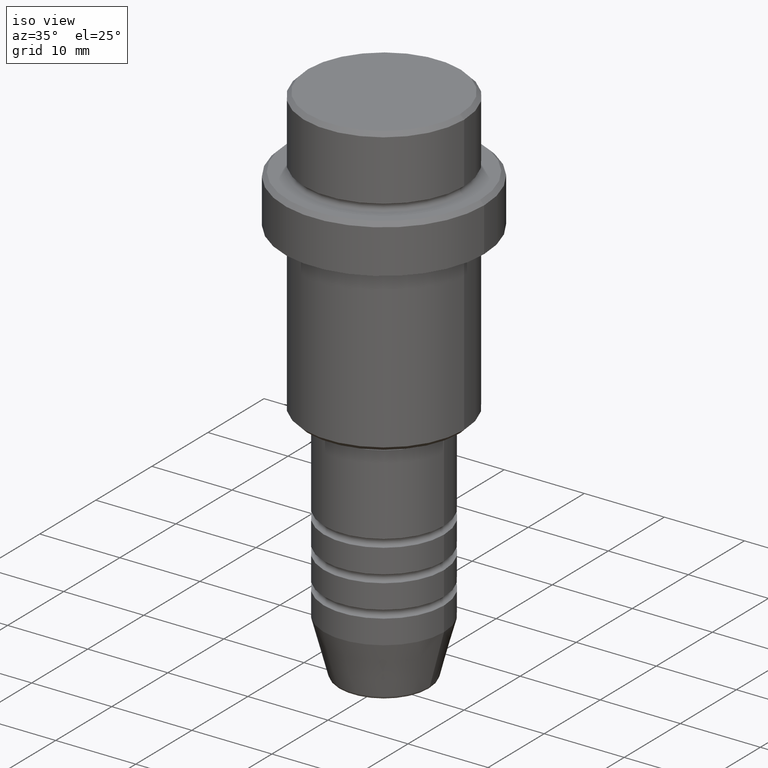
[diagram: clean part render]
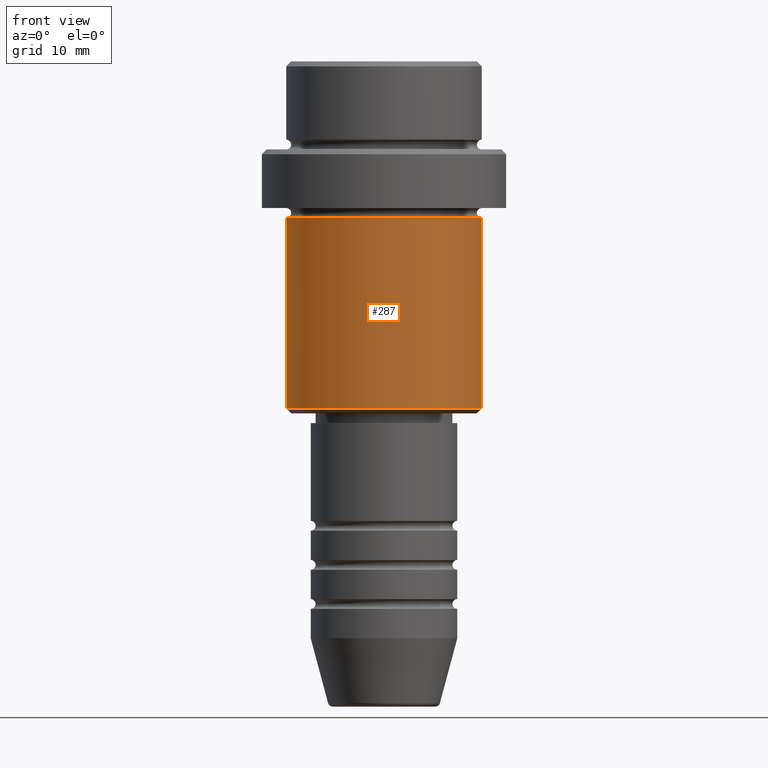
[diagram: tour spotlight — one face highlighted and labeled with its STEP entity id]
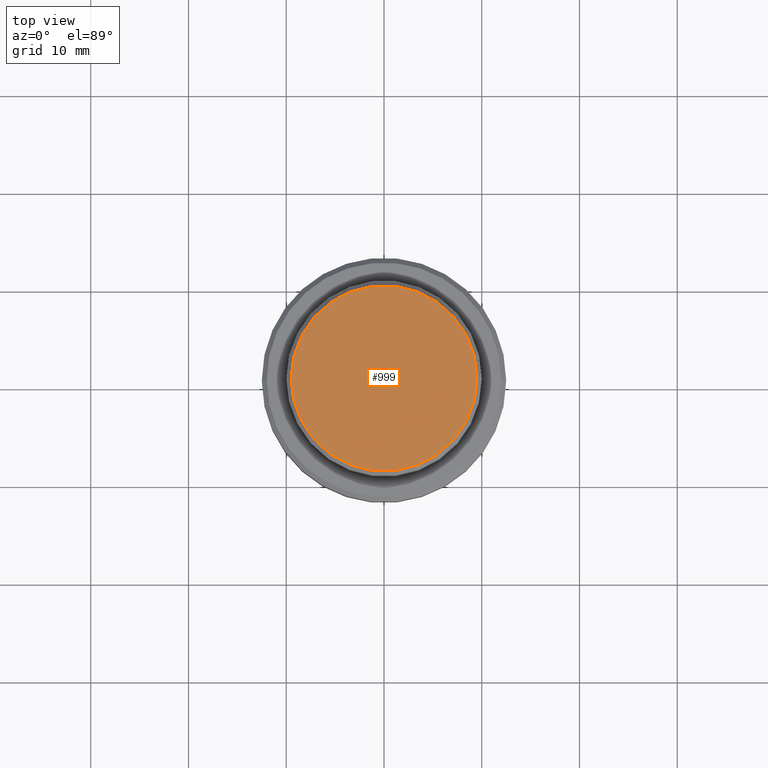
[diagram: tour spotlight — one face highlighted and labeled with its STEP entity id]
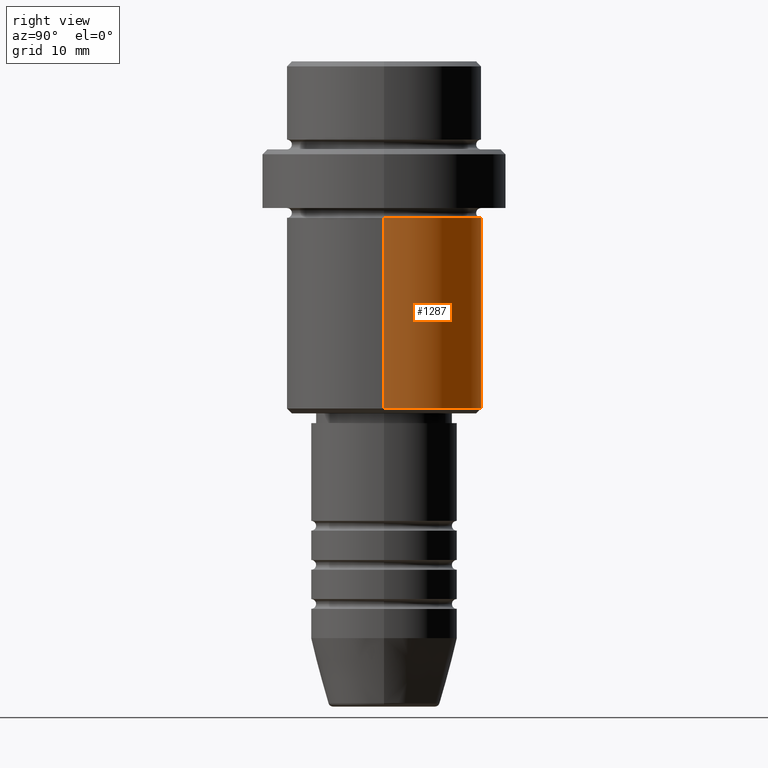
[diagram: tour spotlight — one face highlighted and labeled with its STEP entity id]
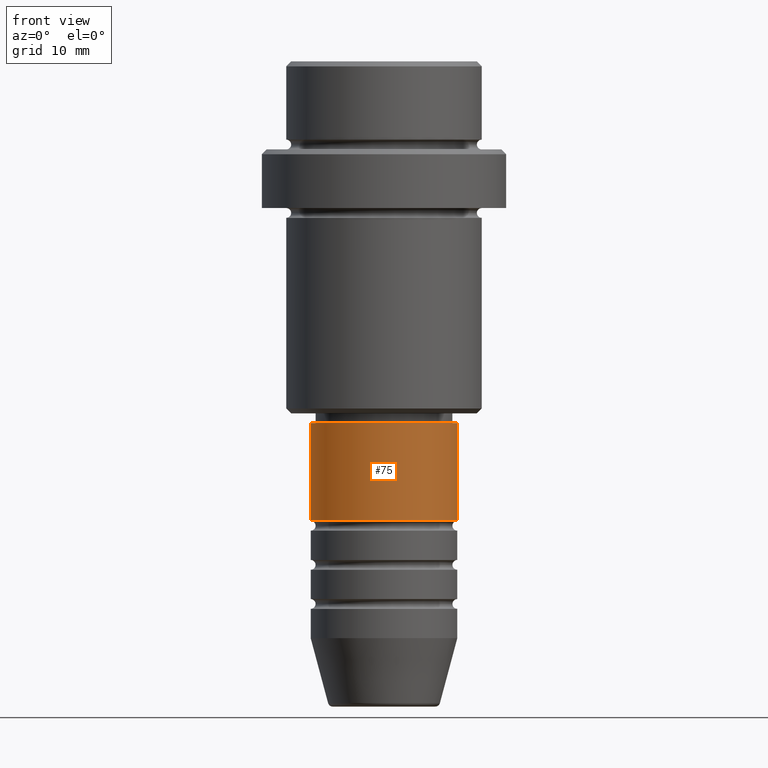
[diagram: tour spotlight — one face highlighted and labeled with its STEP entity id]
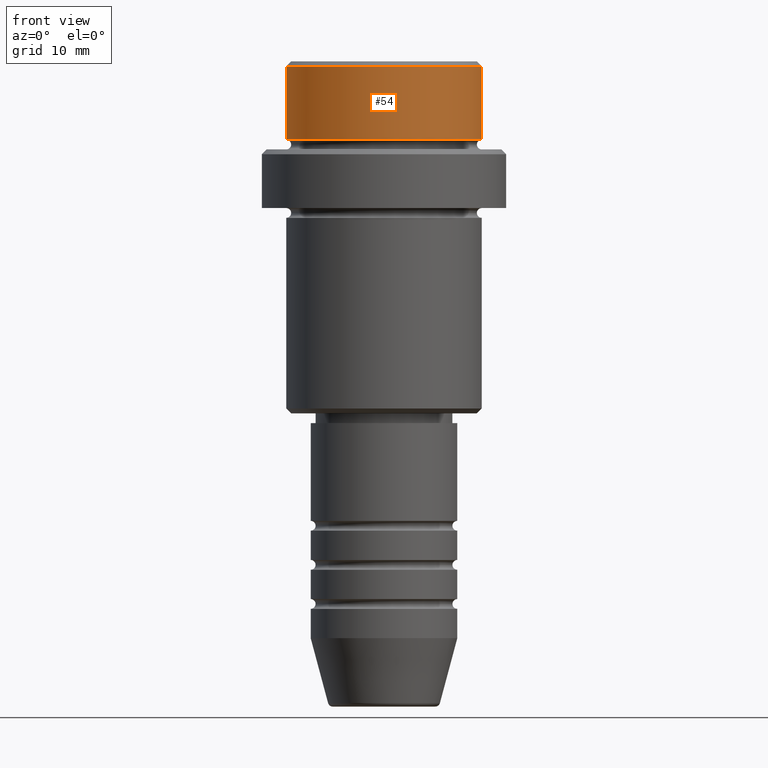
[diagram: tour spotlight — one face highlighted and labeled with its STEP entity id]
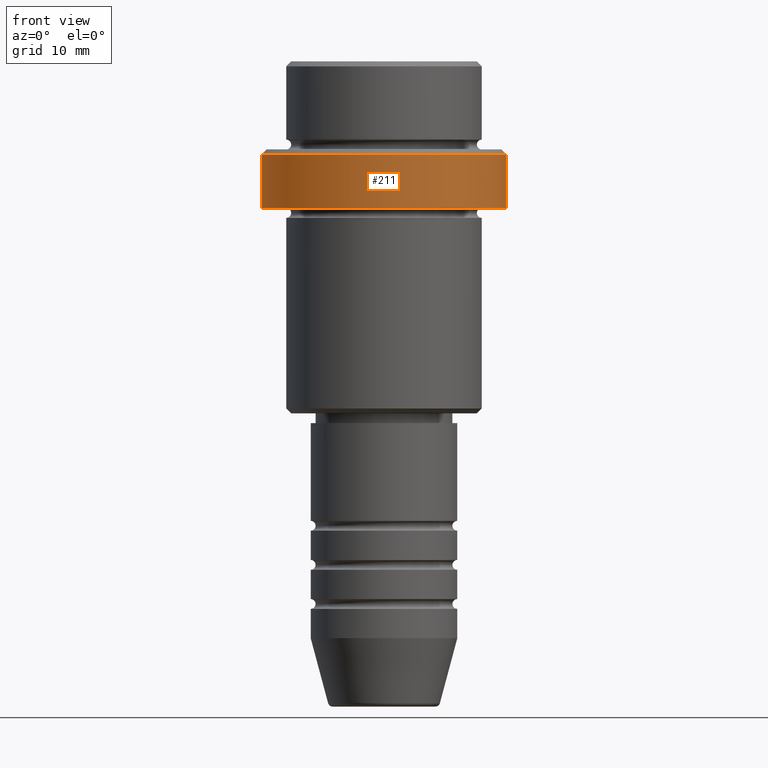
[diagram: tour spotlight — one face highlighted and labeled with its STEP entity id]
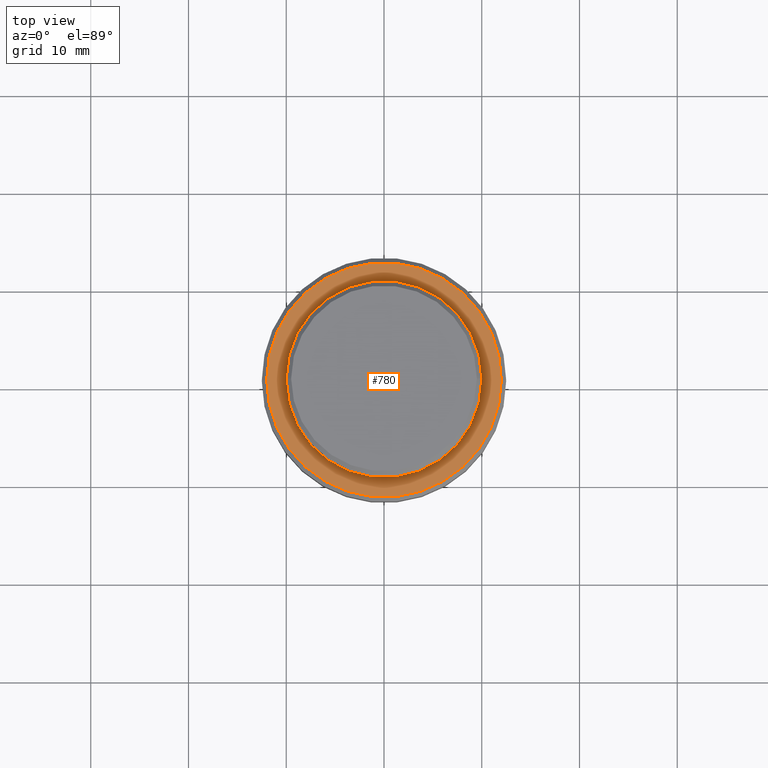
[diagram: tour spotlight — one face highlighted and labeled with its STEP entity id]
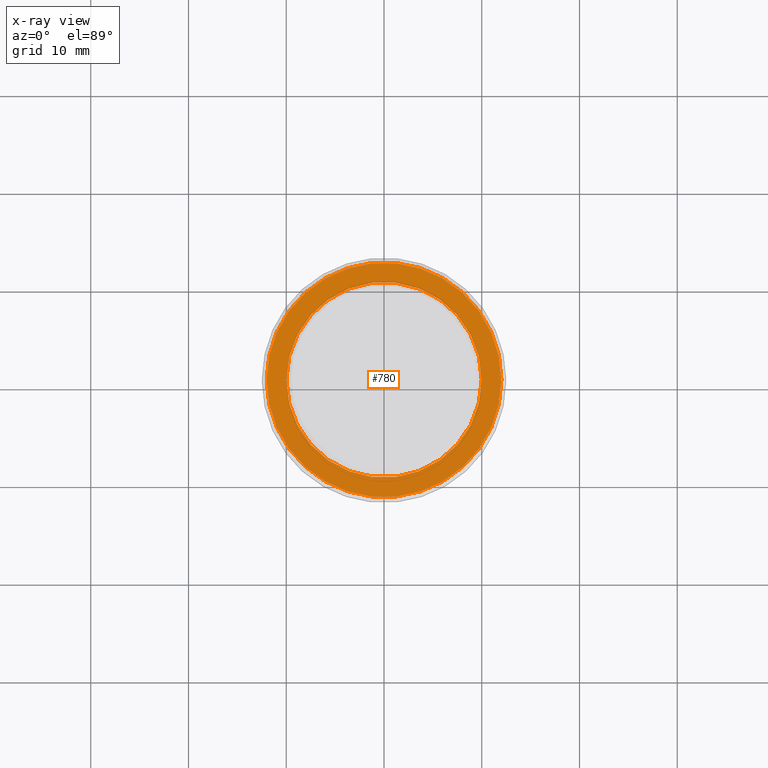
[diagram: x-ray of the same camera — body ghosted, this tour face saturated]
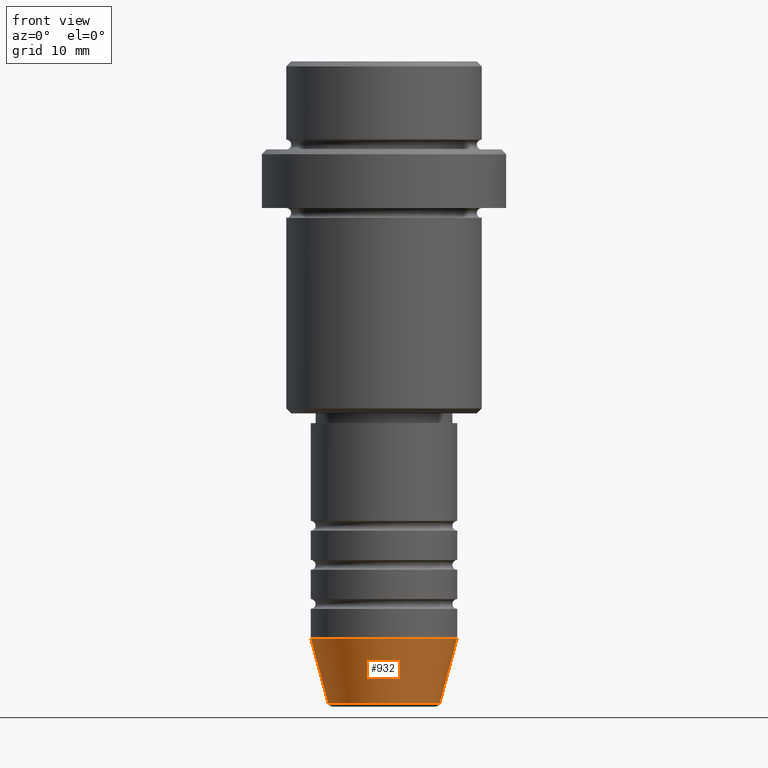
[diagram: tour spotlight — one face highlighted and labeled with its STEP entity id]
A machine part: a face-by-face anatomy tour. The part has 52 B-rep faces; the first image is the clean iso view, then the 8 largest visible faces are spotlighted one at a time (largest first), each with its STEP entity span.

Face 1 — front view, entity #287. In plain terms, the highlighted cylindrical surface (partial cylindrical patch) has radius 10 mm, axis along (-0, -0, 1).
Definition (entity closure, byte-faithful):
#33 = DIRECTION ( 'NONE',  ( 1.000000000000000000, 0.000000000000000000, 0.000000000000000000 ) ) ;
#36 = CARTESIAN_POINT ( 'NONE',  ( 9.999999999999998224, 0.000000000000000000, 0.000000000000000000 ) ) ;
#74 = DIRECTION ( 'NONE',  ( -0.000000000000000000, -0.000000000000000000, 1.000000000000000000 ) ) ;
#100 = AXIS2_PLACEMENT_3D ( 'NONE', #1254, #1136, #33 ) ;
#143 = EDGE_CURVE ( 'NONE', #531, #175, #1231, .T. ) ;
#154 = VECTOR ( 'NONE', #489, 1000.000000000000000 ) ;
#155 = CIRCLE ( 'NONE', #238, 9.999999999999998224 ) ;
#175 = VERTEX_POINT ( 'NONE', #390 ) ;
#231 = CARTESIAN_POINT ( 'NONE',  ( 9.999999999999998224, 0.000000000000000000, -35.49999999999998579 ) ) ;
#238 = AXIS2_PLACEMENT_3D ( 'NONE', #1282, #983, #883 ) ;
#281 = CARTESIAN_POINT ( 'NONE',  ( -9.999999999999998224, 1.224646799147353059E-15, -16.00000000000000000 ) ) ;
#287 = ADVANCED_FACE ( 'NONE', ( #755 ), #1407, .T. ) ;
#307 = EDGE_CURVE ( 'NONE', #558, #531, #155, .T. ) ;
#325 = DIRECTION ( 'NONE',  ( -0.000000000000000000, -0.000000000000000000, 1.000000000000000000 ) ) ;
#373 = VERTEX_POINT ( 'NONE', #281 ) ;
#390 = CARTESIAN_POINT ( 'NONE',  ( 9.999999999999998224, 0.000000000000000000, -16.00000000000000000 ) ) ;
#430 = CARTESIAN_POINT ( 'NONE',  ( 0.000000000000000000, 0.000000000000000000, 0.000000000000000000 ) ) ;
#489 = DIRECTION ( 'NONE',  ( -0.000000000000000000, -0.000000000000000000, 1.000000000000000000 ) ) ;
#531 = VERTEX_POINT ( 'NONE', #231 ) ;
#537 = ORIENTED_EDGE ( 'NONE', *, *, #307, .T. ) ;
#558 = VERTEX_POINT ( 'NONE', #1114 ) ;
#590 = EDGE_CURVE ( 'NONE', #558, #373, #964, .T. ) ;
#613 = AXIS2_PLACEMENT_3D ( 'NONE', #430, #325, #764 ) ;
#698 = ORIENTED_EDGE ( 'NONE', *, *, #143, .T. ) ;
#755 = FACE_OUTER_BOUND ( 'NONE', #1039, .T. ) ;
#764 = DIRECTION ( 'NONE',  ( 1.000000000000000000, 0.000000000000000000, 0.000000000000000000 ) ) ;
#883 = DIRECTION ( 'NONE',  ( -1.000000000000000000, 0.000000000000000000, 0.000000000000000000 ) ) ;
#964 = LINE ( 'NONE', #1178, #1253 ) ;
#983 = DIRECTION ( 'NONE',  ( -0.000000000000000000, -0.000000000000000000, 1.000000000000000000 ) ) ;
#1039 = EDGE_LOOP ( 'NONE', ( #1404, #537, #698, #1094 ) ) ;
#1094 = ORIENTED_EDGE ( 'NONE', *, *, #1314, .F. ) ;
#1107 = CIRCLE ( 'NONE', #100, 9.999999999999998224 ) ;
#1114 = CARTESIAN_POINT ( 'NONE',  ( -9.999999999999998224, 1.224646799147353059E-15, -35.49999999999998579 ) ) ;
#1136 = DIRECTION ( 'NONE',  ( -0.000000000000000000, -0.000000000000000000, 1.000000000000000000 ) ) ;
#1178 = CARTESIAN_POINT ( 'NONE',  ( -9.999999999999998224, 1.224646799147353059E-15, 0.000000000000000000 ) ) ;
#1231 = LINE ( 'NONE', #36, #154 ) ;
#1253 = VECTOR ( 'NONE', #74, 1000.000000000000000 ) ;
#1254 = CARTESIAN_POINT ( 'NONE',  ( 0.000000000000000000, 0.000000000000000000, -16.00000000000000000 ) ) ;
#1282 = CARTESIAN_POINT ( 'NONE',  ( 0.000000000000000000, 0.000000000000000000, -35.49999999999998579 ) ) ;
#1314 = EDGE_CURVE ( 'NONE', #373, #175, #1107, .T. ) ;
#1404 = ORIENTED_EDGE ( 'NONE', *, *, #590, .F. ) ;
#1407 = CYLINDRICAL_SURFACE ( 'NONE', #613, 9.999999999999998224 ) ;

Face 2 — top view, entity #999. In plain terms, the highlighted planar face has unit normal (0, -0, 1).
Definition (entity closure, byte-faithful):
#24 = AXIS2_PLACEMENT_3D ( 'NONE', #1156, #1332, #279 ) ;
#31 = DIRECTION ( 'NONE',  ( -0.000000000000000000, -0.000000000000000000, 1.000000000000000000 ) ) ;
#46 = DIRECTION ( 'NONE',  ( 1.000000000000000000, 0.000000000000000000, 0.000000000000000000 ) ) ;
#85 = EDGE_CURVE ( 'NONE', #865, #924, #1317, .T. ) ;
#108 = EDGE_CURVE ( 'NONE', #924, #865, #587, .T. ) ;
#149 = CARTESIAN_POINT ( 'NONE',  ( 0.000000000000000000, 0.000000000000000000, 0.000000000000000000 ) ) ;
#173 = EDGE_LOOP ( 'NONE', ( #1151, #1377 ) ) ;
#279 = DIRECTION ( 'NONE',  ( 1.000000000000000000, 0.000000000000000000, 0.000000000000000000 ) ) ;
#513 = CARTESIAN_POINT ( 'NONE',  ( 9.500000000000001776, 1.194030629168669469E-15, 0.000000000000000000 ) ) ;
#583 = DIRECTION ( 'NONE',  ( 0.000000000000000000, -0.000000000000000000, 1.000000000000000000 ) ) ;
#587 = CIRCLE ( 'NONE', #893, 9.500000000000001776 ) ;
#691 = FACE_OUTER_BOUND ( 'NONE', #173, .T. ) ;
#865 = VERTEX_POINT ( 'NONE', #513 ) ;
#893 = AXIS2_PLACEMENT_3D ( 'NONE', #1350, #31, #46 ) ;
#905 = CARTESIAN_POINT ( 'NONE',  ( -9.500000000000001776, 0.000000000000000000, 0.000000000000000000 ) ) ;
#924 = VERTEX_POINT ( 'NONE', #905 ) ;
#999 = ADVANCED_FACE ( 'NONE', ( #691 ), #1142, .T. ) ;
#1029 = DIRECTION ( 'NONE',  ( 1.000000000000000000, 0.000000000000000000, 0.000000000000000000 ) ) ;
#1082 = AXIS2_PLACEMENT_3D ( 'NONE', #149, #583, #1029 ) ;
#1142 = PLANE ( 'NONE',  #1082 ) ;
#1151 = ORIENTED_EDGE ( 'NONE', *, *, #108, .T. ) ;
#1156 = CARTESIAN_POINT ( 'NONE',  ( 0.000000000000000000, 0.000000000000000000, 0.000000000000000000 ) ) ;
#1317 = CIRCLE ( 'NONE', #24, 9.500000000000001776 ) ;
#1332 = DIRECTION ( 'NONE',  ( -0.000000000000000000, -0.000000000000000000, 1.000000000000000000 ) ) ;
#1350 = CARTESIAN_POINT ( 'NONE',  ( 0.000000000000000000, 0.000000000000000000, 0.000000000000000000 ) ) ;
#1377 = ORIENTED_EDGE ( 'NONE', *, *, #85, .T. ) ;

Face 3 — right view, entity #1287. In plain terms, the highlighted cylindrical surface (partial cylindrical patch) has radius 10 mm, axis along (-0, -0, 1).
Definition (entity closure, byte-faithful):
#36 = CARTESIAN_POINT ( 'NONE',  ( 9.999999999999998224, 0.000000000000000000, 0.000000000000000000 ) ) ;
#60 = CARTESIAN_POINT ( 'NONE',  ( 0.000000000000000000, 0.000000000000000000, -35.49999999999998579 ) ) ;
#74 = DIRECTION ( 'NONE',  ( -0.000000000000000000, -0.000000000000000000, 1.000000000000000000 ) ) ;
#87 = ORIENTED_EDGE ( 'NONE', *, *, #742, .F. ) ;
#128 = CIRCLE ( 'NONE', #1116, 9.999999999999998224 ) ;
#143 = EDGE_CURVE ( 'NONE', #531, #175, #1231, .T. ) ;
#154 = VECTOR ( 'NONE', #489, 1000.000000000000000 ) ;
#172 = DIRECTION ( 'NONE',  ( 1.000000000000000000, 0.000000000000000000, 0.000000000000000000 ) ) ;
#175 = VERTEX_POINT ( 'NONE', #390 ) ;
#197 = CARTESIAN_POINT ( 'NONE',  ( 0.000000000000000000, 0.000000000000000000, -16.00000000000000000 ) ) ;
#200 = EDGE_CURVE ( 'NONE', #531, #558, #128, .T. ) ;
#231 = CARTESIAN_POINT ( 'NONE',  ( 9.999999999999998224, 0.000000000000000000, -35.49999999999998579 ) ) ;
#276 = FACE_OUTER_BOUND ( 'NONE', #1263, .T. ) ;
#281 = CARTESIAN_POINT ( 'NONE',  ( -9.999999999999998224, 1.224646799147353059E-15, -16.00000000000000000 ) ) ;
#321 = AXIS2_PLACEMENT_3D ( 'NONE', #197, #608, #842 ) ;
#373 = VERTEX_POINT ( 'NONE', #281 ) ;
#389 = DIRECTION ( 'NONE',  ( -0.000000000000000000, -0.000000000000000000, 1.000000000000000000 ) ) ;
#390 = CARTESIAN_POINT ( 'NONE',  ( 9.999999999999998224, 0.000000000000000000, -16.00000000000000000 ) ) ;
#437 = ORIENTED_EDGE ( 'NONE', *, *, #200, .T. ) ;
#488 = CYLINDRICAL_SURFACE ( 'NONE', #897, 9.999999999999998224 ) ;
#489 = DIRECTION ( 'NONE',  ( -0.000000000000000000, -0.000000000000000000, 1.000000000000000000 ) ) ;
#493 = ORIENTED_EDGE ( 'NONE', *, *, #590, .T. ) ;
#531 = VERTEX_POINT ( 'NONE', #231 ) ;
#558 = VERTEX_POINT ( 'NONE', #1114 ) ;
#590 = EDGE_CURVE ( 'NONE', #558, #373, #964, .T. ) ;
#608 = DIRECTION ( 'NONE',  ( -0.000000000000000000, -0.000000000000000000, 1.000000000000000000 ) ) ;
#742 = EDGE_CURVE ( 'NONE', #175, #373, #1208, .T. ) ;
#819 = DIRECTION ( 'NONE',  ( -0.000000000000000000, -0.000000000000000000, 1.000000000000000000 ) ) ;
#842 = DIRECTION ( 'NONE',  ( 1.000000000000000000, 0.000000000000000000, 0.000000000000000000 ) ) ;
#897 = AXIS2_PLACEMENT_3D ( 'NONE', #928, #389, #172 ) ;
#928 = CARTESIAN_POINT ( 'NONE',  ( 0.000000000000000000, 0.000000000000000000, 0.000000000000000000 ) ) ;
#964 = LINE ( 'NONE', #1178, #1253 ) ;
#1037 = DIRECTION ( 'NONE',  ( -1.000000000000000000, 0.000000000000000000, 0.000000000000000000 ) ) ;
#1052 = ORIENTED_EDGE ( 'NONE', *, *, #143, .F. ) ;
#1114 = CARTESIAN_POINT ( 'NONE',  ( -9.999999999999998224, 1.224646799147353059E-15, -35.49999999999998579 ) ) ;
#1116 = AXIS2_PLACEMENT_3D ( 'NONE', #60, #819, #1037 ) ;
#1178 = CARTESIAN_POINT ( 'NONE',  ( -9.999999999999998224, 1.224646799147353059E-15, 0.000000000000000000 ) ) ;
#1208 = CIRCLE ( 'NONE', #321, 9.999999999999998224 ) ;
#1231 = LINE ( 'NONE', #36, #154 ) ;
#1253 = VECTOR ( 'NONE', #74, 1000.000000000000000 ) ;
#1263 = EDGE_LOOP ( 'NONE', ( #437, #493, #87, #1052 ) ) ;
#1287 = ADVANCED_FACE ( 'NONE', ( #276 ), #488, .T. ) ;

Face 4 — front view, entity #75. In plain terms, the highlighted cylindrical surface (partial cylindrical patch) has radius 7.5 mm, axis along (-0, -0, 1).
Definition (entity closure, byte-faithful):
#7 = AXIS2_PLACEMENT_3D ( 'NONE', #491, #141, #821 ) ;
#47 = EDGE_LOOP ( 'NONE', ( #184, #670, #1192, #610 ) ) ;
#75 = ADVANCED_FACE ( 'NONE', ( #357 ), #904, .T. ) ;
#125 = DIRECTION ( 'NONE',  ( -0.000000000000000000, -0.000000000000000000, 1.000000000000000000 ) ) ;
#141 = DIRECTION ( 'NONE',  ( -0.000000000000000000, -0.000000000000000000, 1.000000000000000000 ) ) ;
#184 = ORIENTED_EDGE ( 'NONE', *, *, #1337, .F. ) ;
#188 = AXIS2_PLACEMENT_3D ( 'NONE', #697, #815, #1226 ) ;
#236 = CARTESIAN_POINT ( 'NONE',  ( 7.500000000000000000, 0.000000000000000000, -46.99999999999987921 ) ) ;
#265 = AXIS2_PLACEMENT_3D ( 'NONE', #723, #1363, #483 ) ;
#341 = CIRCLE ( 'NONE', #7, 7.500000000000000000 ) ;
#354 = DIRECTION ( 'NONE',  ( -0.000000000000000000, -0.000000000000000000, 1.000000000000000000 ) ) ;
#357 = FACE_OUTER_BOUND ( 'NONE', #47, .T. ) ;
#416 = EDGE_CURVE ( 'NONE', #602, #930, #341, .T. ) ;
#483 = DIRECTION ( 'NONE',  ( 1.000000000000000000, 0.000000000000000000, 0.000000000000000000 ) ) ;
#491 = CARTESIAN_POINT ( 'NONE',  ( 0.000000000000000000, 0.000000000000000000, -37.00000000000000000 ) ) ;
#500 = EDGE_CURVE ( 'NONE', #1283, #930, #1209, .T. ) ;
#548 = CIRCLE ( 'NONE', #188, 7.500000000000000000 ) ;
#551 = VECTOR ( 'NONE', #354, 1000.000000000000000 ) ;
#602 = VERTEX_POINT ( 'NONE', #753 ) ;
#610 = ORIENTED_EDGE ( 'NONE', *, *, #416, .F. ) ;
#670 = ORIENTED_EDGE ( 'NONE', *, *, #987, .T. ) ;
#684 = CARTESIAN_POINT ( 'NONE',  ( -7.500000000000000000, 9.184850993605147944E-16, 0.000000000000000000 ) ) ;
#697 = CARTESIAN_POINT ( 'NONE',  ( 0.000000000000000000, 0.000000000000000000, -46.99999999999987921 ) ) ;
#723 = CARTESIAN_POINT ( 'NONE',  ( 0.000000000000000000, 0.000000000000000000, 0.000000000000000000 ) ) ;
#753 = CARTESIAN_POINT ( 'NONE',  ( -7.500000000000000000, 9.184850993605147944E-16, -37.00000000000000000 ) ) ;
#776 = CARTESIAN_POINT ( 'NONE',  ( 7.500000000000000000, 0.000000000000000000, 0.000000000000000000 ) ) ;
#807 = CARTESIAN_POINT ( 'NONE',  ( 7.500000000000000000, 0.000000000000000000, -37.00000000000000000 ) ) ;
#815 = DIRECTION ( 'NONE',  ( -0.000000000000000000, -0.000000000000000000, 1.000000000000000000 ) ) ;
#821 = DIRECTION ( 'NONE',  ( 1.000000000000000000, 0.000000000000000000, 0.000000000000000000 ) ) ;
#879 = VECTOR ( 'NONE', #125, 1000.000000000000000 ) ;
#904 = CYLINDRICAL_SURFACE ( 'NONE', #265, 7.500000000000000000 ) ;
#930 = VERTEX_POINT ( 'NONE', #807 ) ;
#936 = CARTESIAN_POINT ( 'NONE',  ( -7.500000000000000000, 9.184850993605147944E-16, -46.99999999999987921 ) ) ;
#987 = EDGE_CURVE ( 'NONE', #1262, #1283, #548, .T. ) ;
#1192 = ORIENTED_EDGE ( 'NONE', *, *, #500, .T. ) ;
#1209 = LINE ( 'NONE', #776, #879 ) ;
#1226 = DIRECTION ( 'NONE',  ( 1.000000000000000000, 0.000000000000000000, 0.000000000000000000 ) ) ;
#1229 = LINE ( 'NONE', #684, #551 ) ;
#1262 = VERTEX_POINT ( 'NONE', #936 ) ;
#1283 = VERTEX_POINT ( 'NONE', #236 ) ;
#1337 = EDGE_CURVE ( 'NONE', #1262, #602, #1229, .T. ) ;
#1363 = DIRECTION ( 'NONE',  ( -0.000000000000000000, -0.000000000000000000, 1.000000000000000000 ) ) ;

Face 5 — front view, entity #54. In plain terms, the highlighted cylindrical surface (partial cylindrical patch) has radius 10 mm, axis along (-0, -0, 1).
Definition (entity closure, byte-faithful):
#10 = AXIS2_PLACEMENT_3D ( 'NONE', #278, #722, #614 ) ;
#16 = DIRECTION ( 'NONE',  ( 1.000000000000000000, 0.000000000000000000, 0.000000000000000000 ) ) ;
#54 = ADVANCED_FACE ( 'NONE', ( #664 ), #133, .T. ) ;
#133 = CYLINDRICAL_SURFACE ( 'NONE', #412, 9.999999999999998224 ) ;
#164 = CARTESIAN_POINT ( 'NONE',  ( 9.999999999999998224, 0.000000000000000000, 0.000000000000000000 ) ) ;
#218 = ORIENTED_EDGE ( 'NONE', *, *, #847, .T. ) ;
#273 = EDGE_LOOP ( 'NONE', ( #1086, #218, #1163, #401 ) ) ;
#278 = CARTESIAN_POINT ( 'NONE',  ( 0.000000000000000000, 0.000000000000000000, -7.999999999999998224 ) ) ;
#291 = DIRECTION ( 'NONE',  ( -0.000000000000000000, -0.000000000000000000, 1.000000000000000000 ) ) ;
#329 = CARTESIAN_POINT ( 'NONE',  ( 0.000000000000000000, 0.000000000000000000, 0.000000000000000000 ) ) ;
#401 = ORIENTED_EDGE ( 'NONE', *, *, #720, .T. ) ;
#403 = CARTESIAN_POINT ( 'NONE',  ( -9.999999999999998224, 1.224646799147353059E-15, 0.000000000000000000 ) ) ;
#412 = AXIS2_PLACEMENT_3D ( 'NONE', #329, #1001, #16 ) ;
#562 = CARTESIAN_POINT ( 'NONE',  ( 9.999999999999998224, 0.000000000000000000, -0.4999999999999970024 ) ) ;
#614 = DIRECTION ( 'NONE',  ( 1.000000000000000000, 0.000000000000000000, 0.000000000000000000 ) ) ;
#664 = FACE_OUTER_BOUND ( 'NONE', #273, .T. ) ;
#671 = DIRECTION ( 'NONE',  ( 0.000000000000000000, 0.000000000000000000, -1.000000000000000000 ) ) ;
#675 = EDGE_CURVE ( 'NONE', #926, #949, #1286, .T. ) ;
#713 = VECTOR ( 'NONE', #1361, 1000.000000000000000 ) ;
#720 = EDGE_CURVE ( 'NONE', #809, #949, #857, .T. ) ;
#722 = DIRECTION ( 'NONE',  ( -0.000000000000000000, -0.000000000000000000, 1.000000000000000000 ) ) ;
#735 = VECTOR ( 'NONE', #291, 1000.000000000000000 ) ;
#789 = LINE ( 'NONE', #164, #713 ) ;
#809 = VERTEX_POINT ( 'NONE', #562 ) ;
#810 = CARTESIAN_POINT ( 'NONE',  ( 9.999999999999998224, 0.000000000000000000, -7.999999999999998224 ) ) ;
#847 = EDGE_CURVE ( 'NONE', #926, #1395, #1105, .T. ) ;
#857 = CIRCLE ( 'NONE', #1188, 9.999999999999998224 ) ;
#926 = VERTEX_POINT ( 'NONE', #933 ) ;
#933 = CARTESIAN_POINT ( 'NONE',  ( -9.999999999999998224, 1.224646799147353059E-15, -7.999999999999998224 ) ) ;
#949 = VERTEX_POINT ( 'NONE', #1334 ) ;
#1001 = DIRECTION ( 'NONE',  ( -0.000000000000000000, -0.000000000000000000, 1.000000000000000000 ) ) ;
#1083 = EDGE_CURVE ( 'NONE', #1395, #809, #789, .T. ) ;
#1086 = ORIENTED_EDGE ( 'NONE', *, *, #675, .F. ) ;
#1105 = CIRCLE ( 'NONE', #10, 9.999999999999998224 ) ;
#1111 = DIRECTION ( 'NONE',  ( 1.000000000000000000, 0.000000000000000000, 0.000000000000000000 ) ) ;
#1163 = ORIENTED_EDGE ( 'NONE', *, *, #1083, .T. ) ;
#1188 = AXIS2_PLACEMENT_3D ( 'NONE', #1322, #671, #1111 ) ;
#1286 = LINE ( 'NONE', #403, #735 ) ;
#1322 = CARTESIAN_POINT ( 'NONE',  ( 0.000000000000000000, 0.000000000000000000, -0.4999999999999970024 ) ) ;
#1334 = CARTESIAN_POINT ( 'NONE',  ( -9.999999999999998224, 1.224646799147353059E-15, -0.4999999999999970024 ) ) ;
#1361 = DIRECTION ( 'NONE',  ( -0.000000000000000000, -0.000000000000000000, 1.000000000000000000 ) ) ;
#1395 = VERTEX_POINT ( 'NONE', #810 ) ;

Face 6 — front view, entity #211. In plain terms, the highlighted cylindrical surface (partial cylindrical patch) has radius 12.5 mm, axis along (-0, -0, 1).
Definition (entity closure, byte-faithful):
#8 = CARTESIAN_POINT ( 'NONE',  ( 0.000000000000000000, 0.000000000000000000, 0.000000000000000000 ) ) ;
#101 = DIRECTION ( 'NONE',  ( -0.000000000000000000, -0.000000000000000000, 1.000000000000000000 ) ) ;
#109 = CARTESIAN_POINT ( 'NONE',  ( -12.50000000000000000, 1.530808498934191521E-15, -15.00000000000000000 ) ) ;
#110 = CARTESIAN_POINT ( 'NONE',  ( -12.50000000000000000, 1.530808498934191521E-15, 0.000000000000000000 ) ) ;
#122 = CARTESIAN_POINT ( 'NONE',  ( 12.50000000000000000, 0.000000000000000000, -15.00000000000000000 ) ) ;
#126 = LINE ( 'NONE', #1327, #1399 ) ;
#211 = ADVANCED_FACE ( 'NONE', ( #268 ), #832, .T. ) ;
#214 = DIRECTION ( 'NONE',  ( 1.000000000000000000, 0.000000000000000000, 0.000000000000000000 ) ) ;
#225 = CARTESIAN_POINT ( 'NONE',  ( 0.000000000000000000, 0.000000000000000000, -15.00000000000000000 ) ) ;
#242 = EDGE_CURVE ( 'NONE', #1252, #1134, #1120, .T. ) ;
#246 = EDGE_CURVE ( 'NONE', #1152, #1134, #1180, .T. ) ;
#268 = FACE_OUTER_BOUND ( 'NONE', #971, .T. ) ;
#342 = CARTESIAN_POINT ( 'NONE',  ( -12.50000000000000000, 1.530808498934191521E-15, -9.500000000000005329 ) ) ;
#423 = DIRECTION ( 'NONE',  ( 1.000000000000000000, 0.000000000000000000, 0.000000000000000000 ) ) ;
#479 = AXIS2_PLACEMENT_3D ( 'NONE', #8, #990, #423 ) ;
#506 = VERTEX_POINT ( 'NONE', #122 ) ;
#560 = CARTESIAN_POINT ( 'NONE',  ( 12.50000000000000000, 0.000000000000000000, -9.500000000000005329 ) ) ;
#630 = DIRECTION ( 'NONE',  ( 1.000000000000000000, 0.000000000000000000, 0.000000000000000000 ) ) ;
#648 = CARTESIAN_POINT ( 'NONE',  ( 0.000000000000000000, 0.000000000000000000, -9.500000000000005329 ) ) ;
#650 = ORIENTED_EDGE ( 'NONE', *, *, #242, .T. ) ;
#707 = ORIENTED_EDGE ( 'NONE', *, *, #246, .F. ) ;
#773 = EDGE_CURVE ( 'NONE', #506, #1252, #126, .T. ) ;
#832 = CYLINDRICAL_SURFACE ( 'NONE', #479, 12.50000000000000000 ) ;
#884 = DIRECTION ( 'NONE',  ( -0.000000000000000000, -0.000000000000000000, 1.000000000000000000 ) ) ;
#971 = EDGE_LOOP ( 'NONE', ( #707, #1026, #1044, #650 ) ) ;
#990 = DIRECTION ( 'NONE',  ( -0.000000000000000000, -0.000000000000000000, 1.000000000000000000 ) ) ;
#1026 = ORIENTED_EDGE ( 'NONE', *, *, #1225, .T. ) ;
#1044 = ORIENTED_EDGE ( 'NONE', *, *, #773, .T. ) ;
#1120 = CIRCLE ( 'NONE', #1278, 12.50000000000000000 ) ;
#1134 = VERTEX_POINT ( 'NONE', #342 ) ;
#1152 = VERTEX_POINT ( 'NONE', #109 ) ;
#1180 = LINE ( 'NONE', #110, #1223 ) ;
#1195 = DIRECTION ( 'NONE',  ( -0.000000000000000000, -0.000000000000000000, 1.000000000000000000 ) ) ;
#1223 = VECTOR ( 'NONE', #101, 1000.000000000000000 ) ;
#1225 = EDGE_CURVE ( 'NONE', #1152, #506, #1401, .T. ) ;
#1252 = VERTEX_POINT ( 'NONE', #560 ) ;
#1278 = AXIS2_PLACEMENT_3D ( 'NONE', #648, #1300, #630 ) ;
#1300 = DIRECTION ( 'NONE',  ( 0.000000000000000000, 0.000000000000000000, -1.000000000000000000 ) ) ;
#1327 = CARTESIAN_POINT ( 'NONE',  ( 12.50000000000000000, 0.000000000000000000, 0.000000000000000000 ) ) ;
#1348 = AXIS2_PLACEMENT_3D ( 'NONE', #225, #1195, #214 ) ;
#1399 = VECTOR ( 'NONE', #884, 1000.000000000000000 ) ;
#1401 = CIRCLE ( 'NONE', #1348, 12.50000000000000000 ) ;

Face 7 — top view, entity #780. An x-ray twin of the same camera follows (body ghosted, this face saturated) — the face is partly hidden behind the body. In plain terms, the highlighted planar face has unit normal (0, -0, 1).
Definition (entity closure, byte-faithful):
#11 = ORIENTED_EDGE ( 'NONE', *, *, #1324, .T. ) ;
#30 = CARTESIAN_POINT ( 'NONE',  ( 0.000000000000000000, 0.000000000000000000, -9.000000000000000000 ) ) ;
#79 = CIRCLE ( 'NONE', #1304, 12.00000000000000355 ) ;
#152 = CARTESIAN_POINT ( 'NONE',  ( 0.000000000000000000, 0.000000000000000000, -9.000000000000000000 ) ) ;
#156 = AXIS2_PLACEMENT_3D ( 'NONE', #672, #559, #1150 ) ;
#157 = DIRECTION ( 'NONE',  ( 0.000000000000000000, 0.000000000000000000, -1.000000000000000000 ) ) ;
#185 = EDGE_CURVE ( 'NONE', #1303, #1031, #966, .T. ) ;
#229 = PLANE ( 'NONE',  #156 ) ;
#263 = DIRECTION ( 'NONE',  ( -0.000000000000000000, -0.000000000000000000, 1.000000000000000000 ) ) ;
#361 = CARTESIAN_POINT ( 'NONE',  ( 9.999999999999992895, 0.000000000000000000, -9.000000000000000000 ) ) ;
#365 = AXIS2_PLACEMENT_3D ( 'NONE', #30, #569, #1269 ) ;
#379 = EDGE_CURVE ( 'NONE', #873, #1190, #758, .T. ) ;
#444 = CARTESIAN_POINT ( 'NONE',  ( -9.999999999999992895, 1.224646799147352468E-15, -9.000000000000000000 ) ) ;
#470 = CARTESIAN_POINT ( 'NONE',  ( -12.00000000000000355, 0.000000000000000000, -9.000000000000000000 ) ) ;
#494 = ORIENTED_EDGE ( 'NONE', *, *, #185, .T. ) ;
#559 = DIRECTION ( 'NONE',  ( 0.000000000000000000, -0.000000000000000000, 1.000000000000000000 ) ) ;
#564 = FACE_BOUND ( 'NONE', #817, .T. ) ;
#569 = DIRECTION ( 'NONE',  ( 0.000000000000000000, 0.000000000000000000, -1.000000000000000000 ) ) ;
#588 = EDGE_CURVE ( 'NONE', #1031, #1303, #801, .T. ) ;
#672 = CARTESIAN_POINT ( 'NONE',  ( 0.000000000000000000, 9.499999999999992895, -9.000000000000000000 ) ) ;
#758 = CIRCLE ( 'NONE', #944, 12.00000000000000355 ) ;
#763 = CARTESIAN_POINT ( 'NONE',  ( 12.00000000000000355, 1.500192328955507734E-15, -9.000000000000000000 ) ) ;
#780 = ADVANCED_FACE ( 'NONE', ( #1315, #564 ), #229, .T. ) ;
#800 = DIRECTION ( 'NONE',  ( 1.000000000000000000, 0.000000000000000000, 0.000000000000000000 ) ) ;
#801 = CIRCLE ( 'NONE', #365, 9.999999999999992895 ) ;
#806 = CARTESIAN_POINT ( 'NONE',  ( 0.000000000000000000, 0.000000000000000000, -9.000000000000000000 ) ) ;
#817 = EDGE_LOOP ( 'NONE', ( #494, #1140 ) ) ;
#873 = VERTEX_POINT ( 'NONE', #470 ) ;
#944 = AXIS2_PLACEMENT_3D ( 'NONE', #806, #1027, #1015 ) ;
#966 = CIRCLE ( 'NONE', #1247, 9.999999999999992895 ) ;
#1015 = DIRECTION ( 'NONE',  ( 1.000000000000000000, 0.000000000000000000, 0.000000000000000000 ) ) ;
#1027 = DIRECTION ( 'NONE',  ( -0.000000000000000000, -0.000000000000000000, 1.000000000000000000 ) ) ;
#1031 = VERTEX_POINT ( 'NONE', #444 ) ;
#1077 = ORIENTED_EDGE ( 'NONE', *, *, #379, .T. ) ;
#1139 = CARTESIAN_POINT ( 'NONE',  ( 0.000000000000000000, 0.000000000000000000, -9.000000000000000000 ) ) ;
#1140 = ORIENTED_EDGE ( 'NONE', *, *, #588, .T. ) ;
#1149 = DIRECTION ( 'NONE',  ( 1.000000000000000000, 0.000000000000000000, 0.000000000000000000 ) ) ;
#1150 = DIRECTION ( 'NONE',  ( 1.000000000000000000, 0.000000000000000000, 0.000000000000000000 ) ) ;
#1190 = VERTEX_POINT ( 'NONE', #763 ) ;
#1247 = AXIS2_PLACEMENT_3D ( 'NONE', #1139, #157, #1149 ) ;
#1269 = DIRECTION ( 'NONE',  ( 1.000000000000000000, 0.000000000000000000, 0.000000000000000000 ) ) ;
#1303 = VERTEX_POINT ( 'NONE', #361 ) ;
#1304 = AXIS2_PLACEMENT_3D ( 'NONE', #152, #263, #800 ) ;
#1315 = FACE_OUTER_BOUND ( 'NONE', #1353, .T. ) ;
#1324 = EDGE_CURVE ( 'NONE', #1190, #873, #79, .T. ) ;
#1353 = EDGE_LOOP ( 'NONE', ( #1077, #11 ) ) ;

Face 8 — front view, entity #932. In plain terms, the highlighted conical surface has half-angle 15 deg.
Definition (entity closure, byte-faithful):
#23 = CARTESIAN_POINT ( 'NONE',  ( 7.500000000000000000, 0.000000000000000000, -59.00000000000000000 ) ) ;
#28 = CARTESIAN_POINT ( 'NONE',  ( -7.500000000000000000, 9.184850993605147944E-16, -59.00000000000000000 ) ) ;
#38 = DIRECTION ( 'NONE',  ( 1.000000000000000000, 0.000000000000000000, 0.000000000000000000 ) ) ;
#39 = ORIENTED_EDGE ( 'NONE', *, *, #1309, .F. ) ;
#76 = CIRCLE ( 'NONE', #441, 7.500000000000000000 ) ;
#138 = CARTESIAN_POINT ( 'NONE',  ( 7.500000000000000000, 0.000000000000000000, -59.00000000000000000 ) ) ;
#204 = CARTESIAN_POINT ( 'NONE',  ( -7.500000000000000000, 9.184850993605147944E-16, -59.00000000000000000 ) ) ;
#260 = DIRECTION ( 'NONE',  ( 1.000000000000000000, 0.000000000000000000, 0.000000000000000000 ) ) ;
#299 = ORIENTED_EDGE ( 'NONE', *, *, #908, .T. ) ;
#300 = DIRECTION ( 'NONE',  ( -0.000000000000000000, -0.000000000000000000, 1.000000000000000000 ) ) ;
#318 = VERTEX_POINT ( 'NONE', #1093 ) ;
#323 = CIRCLE ( 'NONE', #1166, 5.723655072137191269 ) ;
#383 = DIRECTION ( 'NONE',  ( -0.2588190451025213501, 3.169619151431772337E-17, 0.9659258262890680902 ) ) ;
#394 = CARTESIAN_POINT ( 'NONE',  ( 0.000000000000000000, 0.000000000000000000, -65.62940952255127058 ) ) ;
#441 = AXIS2_PLACEMENT_3D ( 'NONE', #525, #300, #975 ) ;
#490 = VERTEX_POINT ( 'NONE', #204 ) ;
#508 = VECTOR ( 'NONE', #383, 1000.000000000000000 ) ;
#514 = ORIENTED_EDGE ( 'NONE', *, *, #1154, .T. ) ;
#525 = CARTESIAN_POINT ( 'NONE',  ( 0.000000000000000000, 0.000000000000000000, -59.00000000000000000 ) ) ;
#540 = LINE ( 'NONE', #23, #1228 ) ;
#577 = ORIENTED_EDGE ( 'NONE', *, *, #629, .F. ) ;
#578 = FACE_OUTER_BOUND ( 'NONE', #1341, .T. ) ;
#629 = EDGE_CURVE ( 'NONE', #490, #837, #76, .T. ) ;
#766 = VERTEX_POINT ( 'NONE', #1091 ) ;
#797 = DIRECTION ( 'NONE',  ( -0.000000000000000000, -0.000000000000000000, 1.000000000000000000 ) ) ;
#802 = CONICAL_SURFACE ( 'NONE', #1147, 7.500000000000000000, 0.2617993877991500740 ) ;
#837 = VERTEX_POINT ( 'NONE', #138 ) ;
#908 = EDGE_CURVE ( 'NONE', #766, #318, #323, .T. ) ;
#932 = ADVANCED_FACE ( 'NONE', ( #578 ), #802, .T. ) ;
#975 = DIRECTION ( 'NONE',  ( 1.000000000000000000, 0.000000000000000000, 0.000000000000000000 ) ) ;
#1038 = CARTESIAN_POINT ( 'NONE',  ( 0.000000000000000000, 0.000000000000000000, -59.00000000000000000 ) ) ;
#1091 = CARTESIAN_POINT ( 'NONE',  ( -5.723655072137190380, 8.097153428560735915E-16, -65.62940952255127058 ) ) ;
#1093 = CARTESIAN_POINT ( 'NONE',  ( 5.723655072137191269, 0.000000000000000000, -65.62940952255127058 ) ) ;
#1147 = AXIS2_PLACEMENT_3D ( 'NONE', #1038, #1261, #38 ) ;
#1153 = LINE ( 'NONE', #28, #508 ) ;
#1154 = EDGE_CURVE ( 'NONE', #318, #837, #540, .T. ) ;
#1166 = AXIS2_PLACEMENT_3D ( 'NONE', #394, #797, #260 ) ;
#1228 = VECTOR ( 'NONE', #1312, 1000.000000000000000 ) ;
#1261 = DIRECTION ( 'NONE',  ( -0.000000000000000000, -0.000000000000000000, 1.000000000000000000 ) ) ;
#1309 = EDGE_CURVE ( 'NONE', #766, #490, #1153, .T. ) ;
#1312 = DIRECTION ( 'NONE',  ( 0.2588190451025213501, 0.000000000000000000, 0.9659258262890680902 ) ) ;
#1341 = EDGE_LOOP ( 'NONE', ( #39, #299, #514, #577 ) ) ;